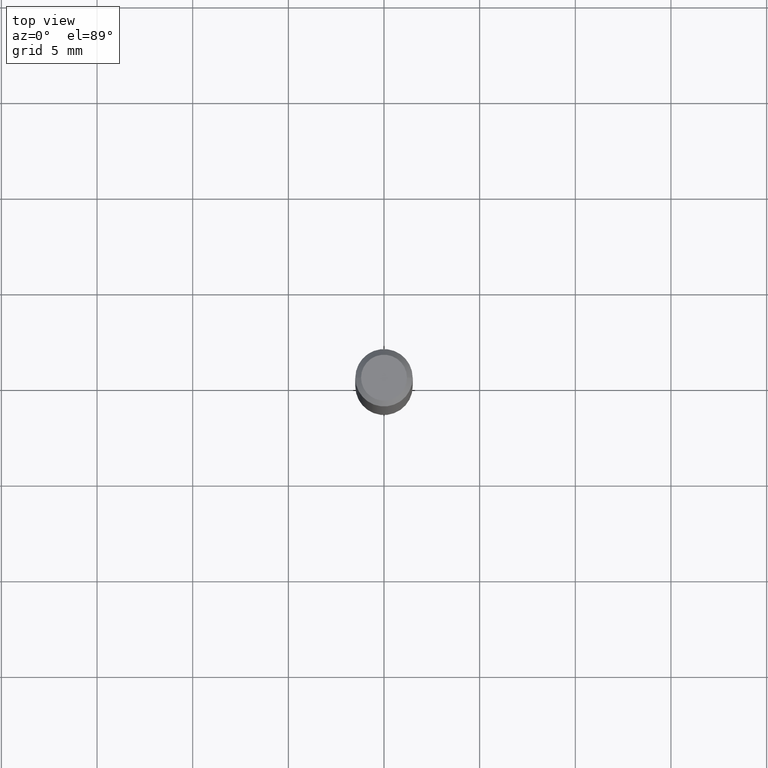
[diagram: clean part render]
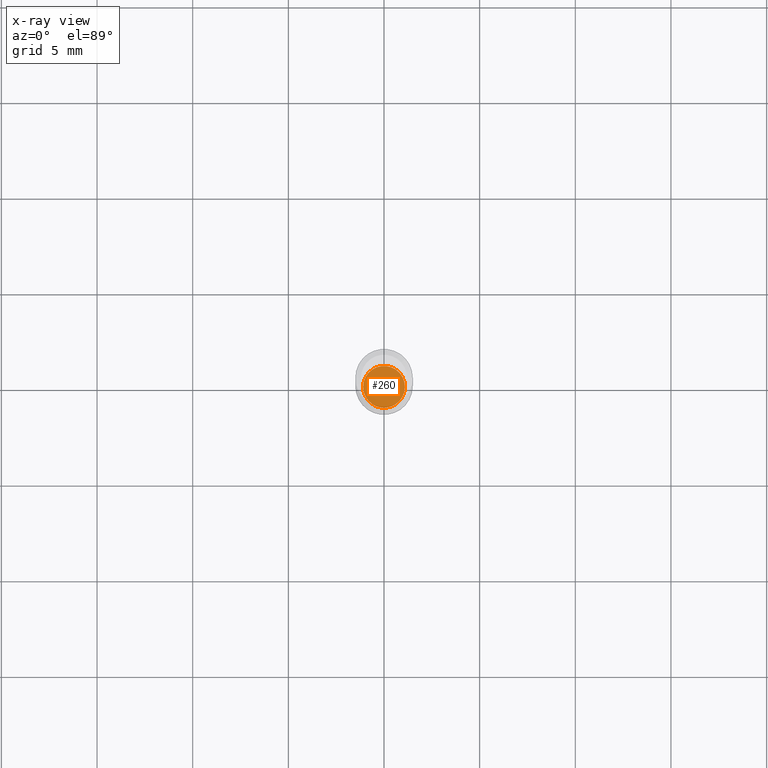
[diagram: x-ray — body ghosted, one internal face saturated and labeled with its STEP entity id]
A machine part, top view, then the same camera in x-ray: the body is ghosted and one INTERNAL B-rep face — a face not visible from any outside direction — is saturated and labeled: STEP entity #260.
In plain terms, the highlighted planar face has unit normal (-0, 0, 1).
Its self-contained STEP definition (entity closure, byte-faithful):
#1 = DIRECTION ( 'NONE',  ( 1.000000000000000000, -6.982962677686266711E-15, 0.000000000000000000 ) ) ;
#5 = ORIENTED_EDGE ( 'NONE', *, *, #243, .F. ) ;
#30 = FACE_OUTER_BOUND ( 'NONE', #116, .T. ) ;
#36 = DIRECTION ( 'NONE',  ( 1.000000000000000000, -6.982962677686266711E-15, 0.000000000000000000 ) ) ;
#48 = VERTEX_POINT ( 'NONE', #197 ) ;
#67 = CARTESIAN_POINT ( 'NONE',  ( 2.676565608369631794E-29, -3.821426325363822773E-15, -1.094499999999999806 ) ) ;
#68 = AXIS2_PLACEMENT_3D ( 'NONE', #67, #334, #1 ) ;
#71 = DIRECTION ( 'NONE',  ( -2.445468806185136597E-29, 3.491481338843145583E-15, 1.000000000000000000 ) ) ;
#116 = EDGE_LOOP ( 'NONE', ( #5, #368 ) ) ;
#127 = AXIS2_PLACEMENT_3D ( 'NONE', #214, #71, #36 ) ;
#168 = EDGE_CURVE ( 'NONE', #230, #48, #462, .T. ) ;
#183 = CARTESIAN_POINT ( 'NONE',  ( 2.676565608369631794E-29, -3.821426325363822773E-15, -1.094499999999999806 ) ) ;
#197 = CARTESIAN_POINT ( 'NONE',  ( 0.04299999999999998962, -4.121693720504331642E-15, -1.094499999999999806 ) ) ;
#214 = CARTESIAN_POINT ( 'NONE',  ( 2.676565608369631794E-29, -3.821426325363822773E-15, -1.094499999999999806 ) ) ;
#230 = VERTEX_POINT ( 'NONE', #262 ) ;
#243 = EDGE_CURVE ( 'NONE', #48, #230, #409, .T. ) ;
#254 = DIRECTION ( 'NONE',  ( -2.438088387897960049E-29, 3.491481338843145188E-15, 1.000000000000000000 ) ) ;
#260 = ADVANCED_FACE ( 'NONE', ( #30 ), #295, .F. ) ;
#262 = CARTESIAN_POINT ( 'NONE',  ( -0.04299999999999998962, -3.513243721812868615E-15, -1.094499999999999806 ) ) ;
#295 = PLANE ( 'NONE',  #434 ) ;
#303 = DIRECTION ( 'NONE',  ( 1.000000000000000000, -6.982962677686265922E-15, 4.876176775795935793E-29 ) ) ;
#334 = DIRECTION ( 'NONE',  ( -2.445468806185136597E-29, 3.491481338843145583E-15, 1.000000000000000000 ) ) ;
#368 = ORIENTED_EDGE ( 'NONE', *, *, #168, .F. ) ;
#409 = CIRCLE ( 'NONE', #127, 0.04299999999999998962 ) ;
#434 = AXIS2_PLACEMENT_3D ( 'NONE', #183, #254, #303 ) ;
#462 = CIRCLE ( 'NONE', #68, 0.04299999999999998962 ) ;